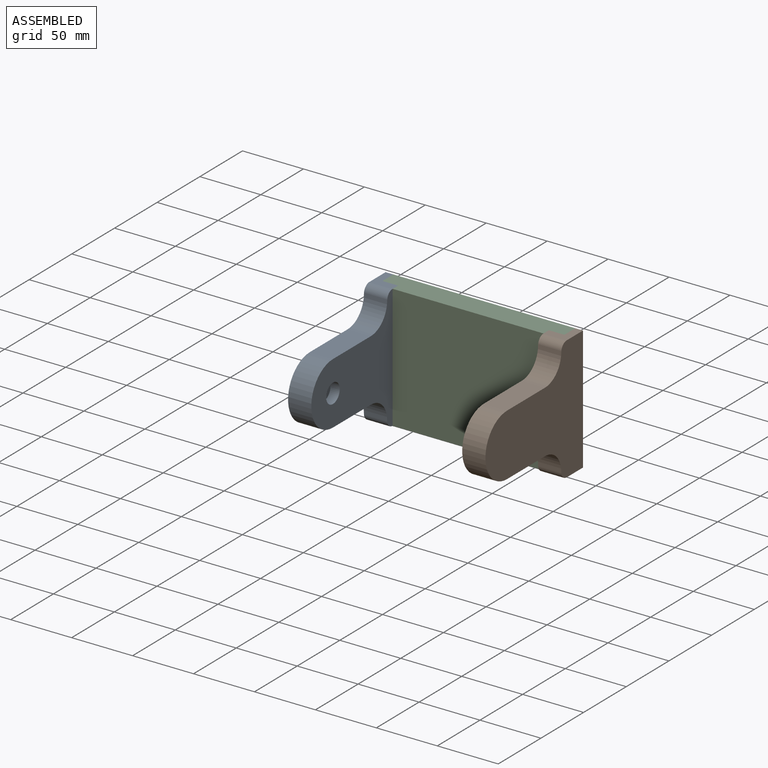
[diagram: assembled view]
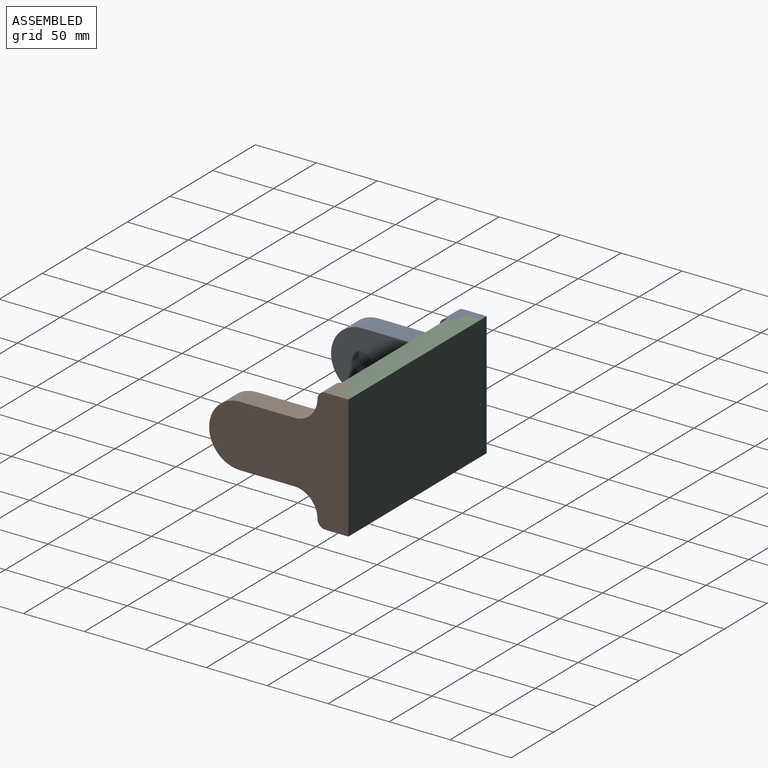
[diagram: assembled view, second angle]
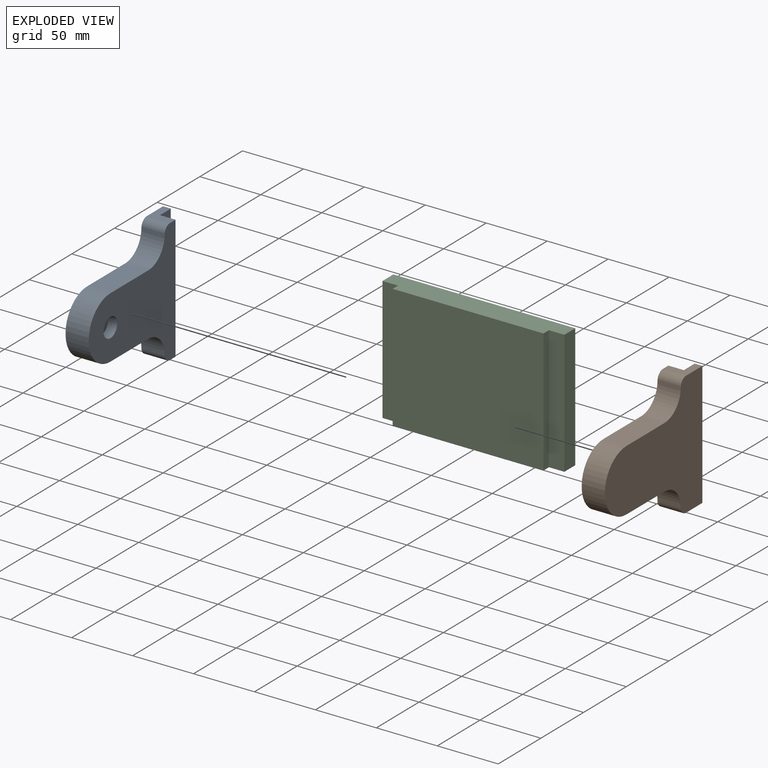
[diagram: exploded view]
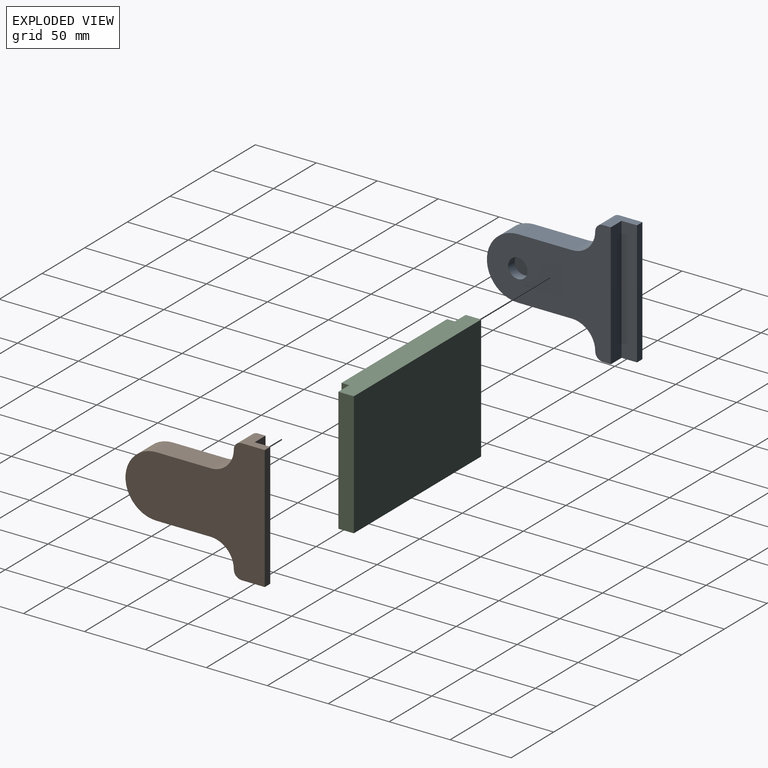
[diagram: exploded view, second angle]
ASSEMBLY  parts=3 mates=2
PART A: 16 faces, bbox 114.3x19.1x101.6 mm
  f0: plane 101.6x101.6mm, normal (0,1,0), area 5470.1mm2, adj f1,f2,f3,f4,f5,f7,f8,f9
  f1: cylinder r=25.4mm len=50.8mm, axis (0,1,0), area 1520.1mm2, adj f0,f2,f10,f11
  f2: plane 44.45x19.05mm, normal (0,0,1), area 846.8mm2, adj f0,f1,f3,f11
  f3: cylinder r=19.05mm len=19.05mm, axis (0,1,0), area 570mm2, adj f0,f2,f4,f11
  f4: cylinder r=6.35mm len=19.05mm, axis (0,1,0), area 190mm2, adj f0,f3,f5,f11
  f5: plane 19.05x19.05mm, normal (0,0,1), area 201.6mm2, adj f0,f4,f6,f11,f14,f15
  f6: plane 101.6x6.35mm, normal (-1,0,0), area 645.2mm2, adj f5,f7,f11,f15
  f7: plane 19.05x19.05mm, normal (0,0,-1), area 201.6mm2, adj f0,f6,f8,f11,f14,f15
  f8: cylinder r=6.35mm len=19.05mm, axis (0,1,0), area 190mm2, adj f0,f7,f9,f11
  f9: cylinder r=19.05mm len=19.05mm, axis (0,1,0), area 570mm2, adj f0,f8,f10,f11
  f10: plane 44.45x19.05mm, normal (0,0,-1), area 846.8mm2, adj f0,f1,f9,f11
  f11: plane 114.3x101.6mm, normal (0,-1,0), area 6958.3mm2, adj f1,f2,f3,f4,f5,f6,f7,f8
  f12: cylinder r=7.94mm len=15.88mm, axis (0,1,0), area 380mm2, adj f0,f13
  f13: plane 15.88x15.88mm, normal (0,1,0), area 197.9mm2, adj f12
  f14: plane 101.6x12.7mm, normal (-1,0,0), area 1290.3mm2, adj f0,f5,f7,f15
  f15: plane 101.6x12.7mm, normal (0,1,0), area 1290.3mm2, adj f5,f6,f7,f14
PART B: 16 faces, bbox 114.3x19.1x101.6 mm
  f0: plane 101.6x6.35mm, normal (-1,0,0), area 645.2mm2, adj f1,f7,f11,f15
  f1: plane 19.05x19.05mm, normal (0,0,-1), area 201.6mm2, adj f0,f2,f8,f11,f14,f15
  f2: plane 101.6x101.6mm, normal (0,-1,0), area 5470.1mm2, adj f1,f3,f4,f5,f6,f7,f8,f9
  f3: cylinder r=25.4mm len=50.8mm, axis (0,1,0), area 1520.1mm2, adj f2,f4,f10,f11
  f4: plane 44.45x19.05mm, normal (0,0,1), area 846.8mm2, adj f2,f3,f5,f11
  f5: cylinder r=19.05mm len=19.05mm, axis (0,1,0), area 570mm2, adj f2,f4,f6,f11
  f6: cylinder r=6.35mm len=19.05mm, axis (0,1,0), area 190mm2, adj f2,f5,f7,f11
  f7: plane 19.05x19.05mm, normal (0,0,1), area 201.6mm2, adj f0,f2,f6,f11,f14,f15
  f8: cylinder r=6.35mm len=19.05mm, axis (0,1,0), area 190mm2, adj f1,f2,f9,f11
  f9: cylinder r=19.05mm len=19.05mm, axis (0,1,0), area 570mm2, adj f2,f8,f10,f11
  f10: plane 44.45x19.05mm, normal (0,0,-1), area 846.8mm2, adj f2,f3,f9,f11
  f11: plane 114.3x101.6mm, normal (0,1,0), area 6958.3mm2, adj f0,f1,f3,f4,f5,f6,f7,f8
  f12: cylinder r=7.94mm len=15.88mm, axis (0,-1,0), area 380mm2, adj f2,f13
  f13: plane 15.88x15.88mm, normal (0,-1,0), area 197.9mm2, adj f12
  f14: plane 101.6x12.7mm, normal (-1,0,0), area 1290.3mm2, adj f1,f2,f7,f15
  f15: plane 101.6x12.7mm, normal (0,-1,0), area 1290.3mm2, adj f0,f1,f7,f14
PART C: 10 faces, bbox 149.2x19.1x101.6 mm
  f0: plane 149.23x19.05mm, normal (0,0,1), area 2681.4mm2, adj f1,f3,f4,f5,f6,f7,f8,f9
  f1: plane 101.6x12.7mm, normal (-1,0,0), area 1290.3mm2, adj f0,f2,f5,f9
  f2: plane 149.23x19.05mm, normal (0,0,-1), area 2681.4mm2, adj f1,f3,f4,f5,f6,f7,f8,f9
  f3: plane 101.6x12.7mm, normal (1,0,0), area 1290.3mm2, adj f0,f2,f5,f7
  f4: plane 123.83x101.6mm, normal (0,-1,0), area 12580.6mm2, adj f0,f2,f6,f8
  f5: plane 149.23x101.6mm, normal (0,1,0), area 15161.3mm2, adj f0,f1,f2,f3
  f6: plane 101.6x6.35mm, normal (1,0,0), area 645.2mm2, adj f0,f2,f4,f7
  f7: plane 101.6x12.7mm, normal (0,-1,0), area 1290.3mm2, adj f0,f2,f3,f6
  f8: plane 101.6x6.35mm, normal (-1,0,0), area 645.2mm2, adj f0,f2,f4,f9
  f9: plane 101.6x12.7mm, normal (0,-1,0), area 1290.3mm2, adj f0,f1,f2,f8
PLACE A rot(axis=(0,0,-1),90deg) t=(-62.42,-76.05,5.43)mm
PLACE B rot(axis=(0,0,-1),90deg) t=(80.45,-76.05,5.43)mm
PLACE C t=(-0.51,12.85,5.43)mm fixed
MATE fastened A.f15 <-> C.f1  axis (1,0,0) through (-75.12,6.5,5.43)mm
MATE fastened B.f15 <-> C.f3  axis (-1,0,0) through (74.1,6.5,5.43)mm
